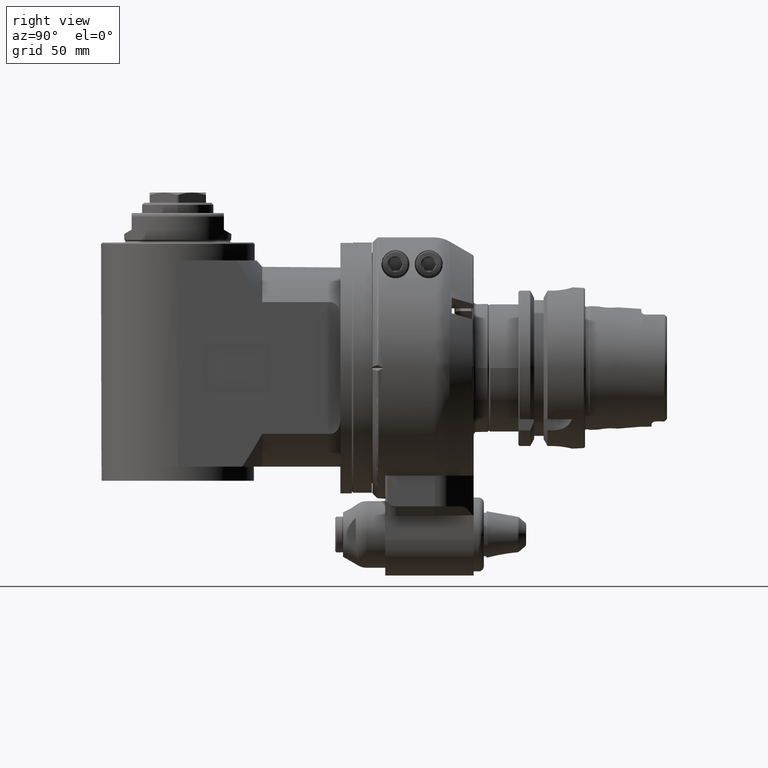
[diagram: clean part render]
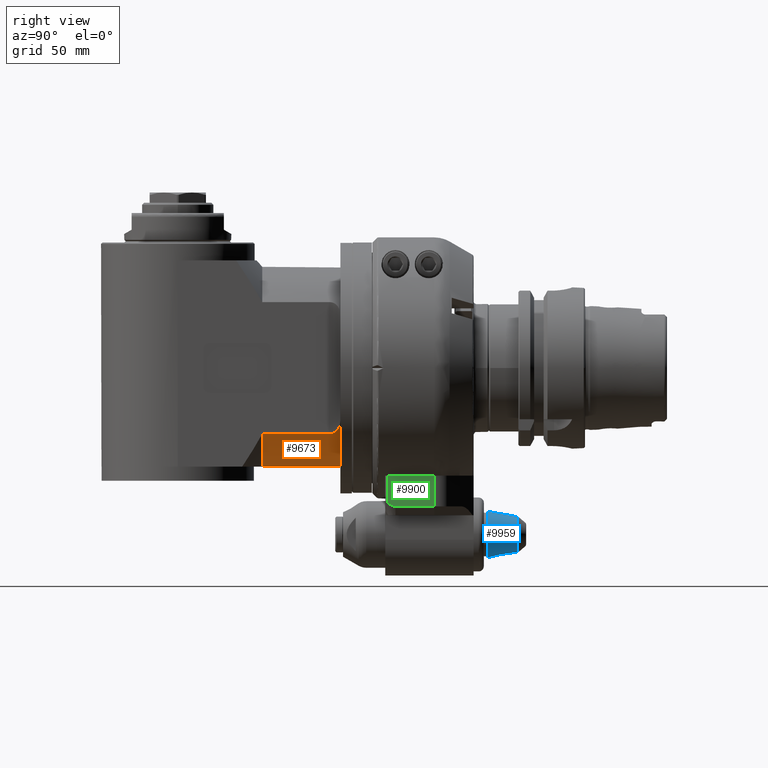
[diagram: same view with three faces highlighted in distinct colors, each labeled with its STEP entity id]
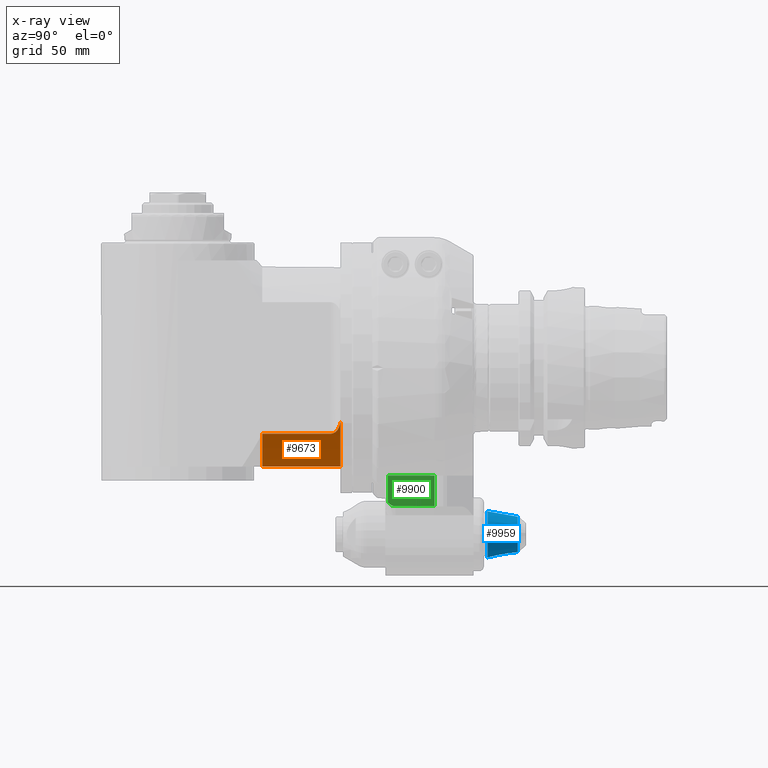
[diagram: x-ray of the same camera — body ghosted, the three highlighted faces saturated]
A machine part, right view with three faces highlighted in distinct colors.
The next image is the same camera in x-ray (body ghosted, the three faces saturated) — at least one of them is partly hidden behind the body in this view.
Their STEP definitions:

[orange] entity #9673 — the highlighted cylindrical surface (partial cylindrical patch) has radius 39.5 mm, axis along (-0, 1, 0).
#95=B_SPLINE_CURVE_WITH_KNOTS('',3,(#14729,#14730,#14731,#14732,#14733,
#14734,#14735,#14736,#14737,#14738,#14739,#14740),.UNSPECIFIED.,.F.,.F.,
(4,2,2,2,2,4),(-1.93050828222532,-1.85797388629216,-1.785439490359,-1.64037069849268,
-1.36443592047398,-1.08850114245528),.UNSPECIFIED.);
#803=FACE_OUTER_BOUND('',#1406,.T.);
#1406=EDGE_LOOP('',(#6582,#6583,#6584,#6585,#6586));
#2064=LINE('',#14601,#2762);
#2078=LINE('',#14656,#2776);
#2762=VECTOR('',#11521,26.5);
#2776=VECTOR('',#11551,30.5);
#3469=CIRCLE('',#10331,39.5);
#3478=CIRCLE('',#10350,39.5);
#4029=VERTEX_POINT('',#14596);
#4030=VERTEX_POINT('',#14600);
#4049=VERTEX_POINT('',#14652);
#4051=VERTEX_POINT('',#14655);
#4057=VERTEX_POINT('',#14673);
#5004=EDGE_CURVE('',#4030,#4029,#2064,.T.);
#5027=EDGE_CURVE('',#4051,#4049,#2078,.T.);
#5035=EDGE_CURVE('',#4057,#4049,#3469,.T.);
#5051=EDGE_CURVE('',#4030,#4057,#95,.T.);
#5052=EDGE_CURVE('',#4051,#4029,#3478,.T.);
#6582=ORIENTED_EDGE('',*,*,#5035,.F.);
#6583=ORIENTED_EDGE('',*,*,#5051,.F.);
#6584=ORIENTED_EDGE('',*,*,#5004,.T.);
#6585=ORIENTED_EDGE('',*,*,#5052,.F.);
#6586=ORIENTED_EDGE('',*,*,#5027,.T.);
#9506=CYLINDRICAL_SURFACE('',#10349,39.5);
#9673=ADVANCED_FACE('',(#803),#9506,.T.);
#10331=AXIS2_PLACEMENT_3D('',#14675,#11562,#11563);
#10349=AXIS2_PLACEMENT_3D('',#14741,#11603,#11604);
#10350=AXIS2_PLACEMENT_3D('',#14742,#11605,#11606);
#11521=DIRECTION('',(0.,-1.,0.));
#11551=DIRECTION('',(0.,1.,0.));
#11562=DIRECTION('center_axis',(0.,1.,0.));
#11563=DIRECTION('ref_axis',(-0.509011880072991,0.,-0.860759493670885));
#11603=DIRECTION('center_axis',(0.,1.,0.));
#11604=DIRECTION('ref_axis',(1.,0.,0.));
#11605=DIRECTION('center_axis',(0.,-1.,0.));
#11606=DIRECTION('ref_axis',(-0.974683544303807,0.,-0.223588882691802));
#14596=CARTESIAN_POINT('',(-36.53528852714,10.,-30.));
#14600=CARTESIAN_POINT('',(-36.53528852714,36.5,-30.));
#14601=CARTESIAN_POINT('',(-36.53528852714,36.5,-30.));
#14652=CARTESIAN_POINT('',(-49.33995821208,40.5,-8.831760866328));
#14655=CARTESIAN_POINT('',(-49.33995821208,10.,-8.831760866328));
#14656=CARTESIAN_POINT('',(-49.33995821208,10.,-8.831760866328));
#14673=CARTESIAN_POINT('',(-30.94592747497,40.5,-34.));
#14675=CARTESIAN_POINT('Origin',(-10.83995821208,40.5,0.));
#14729=CARTESIAN_POINT('Ctrl Pts',(-36.5352885271392,36.5,-30.));
#14730=CARTESIAN_POINT('Ctrl Pts',(-36.5352885271392,36.7417813197774,-30.));
#14731=CARTESIAN_POINT('Ctrl Pts',(-36.5093115090764,36.9865568879428,-30.0223065786437));
#14732=CARTESIAN_POINT('Ctrl Pts',(-36.4061623967231,37.4634279245404,-30.1101941971067));
#14733=CARTESIAN_POINT('Ctrl Pts',(-36.329010908947,37.6955363715735,-30.1757289931184));
#14734=CARTESIAN_POINT('Ctrl Pts',(-36.0344467044144,38.3498225616322,-30.4229103159919));
#14735=CARTESIAN_POINT('Ctrl Pts',(-35.7503870530606,38.7293083563774,-30.6572643831154));
#14736=CARTESIAN_POINT('Ctrl Pts',(-34.8791022485318,39.5828815049562,-31.3512769999091));
#14737=CARTESIAN_POINT('Ctrl Pts',(-34.1545103980812,39.955310173942,-31.8997692146199));
#14738=CARTESIAN_POINT('Ctrl Pts',(-32.5842796431843,40.4153899163436,-32.9901214337526));
#14739=CARTESIAN_POINT('Ctrl Pts',(-31.7376390743422,40.5,-33.5318197328769));
#14740=CARTESIAN_POINT('Ctrl Pts',(-30.9459274749631,40.5,-34.));
#14741=CARTESIAN_POINT('Origin',(-10.83995821208,24.60210073516,0.));
#14742=CARTESIAN_POINT('Origin',(-10.83995821208,10.,0.));

[blue] entity #9959 — the highlighted conical surface has half-angle 10 deg.
#305=CONICAL_SURFACE('',#10943,7.965302560236,0.174532925199433);
#1089=FACE_OUTER_BOUND('',#1728,.T.);
#1728=EDGE_LOOP('',(#8054,#8055,#8056,#8057,#8058,#8059));
#2419=LINE('',#18263,#3117);
#3117=VECTOR('',#13126,7.965302560236);
#3767=CIRCLE('',#10941,9.);
#3768=CIRCLE('',#10942,9.);
#3769=CIRCLE('',#10944,6.930605120471);
#3770=CIRCLE('',#10945,6.930605120471);
#4533=VERTEX_POINT('',#18256);
#4534=VERTEX_POINT('',#18257);
#4535=VERTEX_POINT('',#18262);
#4536=VERTEX_POINT('',#18264);
#5781=EDGE_CURVE('',#4533,#4534,#3767,.T.);
#5782=EDGE_CURVE('',#4534,#4533,#3768,.T.);
#5784=EDGE_CURVE('',#4533,#4535,#2419,.T.);
#5785=EDGE_CURVE('',#4536,#4535,#3769,.T.);
#5786=EDGE_CURVE('',#4535,#4536,#3770,.T.);
#8054=ORIENTED_EDGE('',*,*,#5781,.T.);
#8055=ORIENTED_EDGE('',*,*,#5782,.T.);
#8056=ORIENTED_EDGE('',*,*,#5784,.T.);
#8057=ORIENTED_EDGE('',*,*,#5785,.F.);
#8058=ORIENTED_EDGE('',*,*,#5786,.F.);
#8059=ORIENTED_EDGE('',*,*,#5784,.F.);
#9959=ADVANCED_FACE('',(#1089),#305,.T.);
#10941=AXIS2_PLACEMENT_3D('',#18258,#13119,#13120);
#10942=AXIS2_PLACEMENT_3D('',#18259,#13121,#13122);
#10943=AXIS2_PLACEMENT_3D('',#18261,#13124,#13125);
#10944=AXIS2_PLACEMENT_3D('',#18265,#13127,#13128);
#10945=AXIS2_PLACEMENT_3D('',#18266,#13129,#13130);
#13119=DIRECTION('center_axis',(0.,1.,0.));
#13120=DIRECTION('ref_axis',(0.,0.,-1.));
#13121=DIRECTION('center_axis',(0.,1.,0.));
#13122=DIRECTION('ref_axis',(0.,0.,-1.));
#13124=DIRECTION('center_axis',(0.,-1.,0.));
#13125=DIRECTION('ref_axis',(0.,0.,-1.));
#13126=DIRECTION('',(2.12657684957577E-17,0.984807753012208,-0.17364817766693));
#13127=DIRECTION('center_axis',(0.,1.,0.));
#13128=DIRECTION('ref_axis',(0.,0.,-1.));
#13129=DIRECTION('center_axis',(0.,1.,0.));
#13130=DIRECTION('ref_axis',(0.,0.,-1.));
#18256=CARTESIAN_POINT('',(0.,45.,-56.));
#18257=CARTESIAN_POINT('',(-1.10218211923262E-15,45.,-74.));
#18258=CARTESIAN_POINT('Origin',(0.,45.,-65.));
#18259=CARTESIAN_POINT('Origin',(0.,45.,-65.));
#18261=CARTESIAN_POINT('Origin',(0.,50.86806077894,-65.));
#18262=CARTESIAN_POINT('',(0.,56.73612155788,-58.06939487953));
#18263=CARTESIAN_POINT('',(-9.75468228463324E-16,50.86806077894,-57.034697439764));
#18264=CARTESIAN_POINT('',(8.48754337693907E-16,56.73612155788,-71.930605120471));
#18265=CARTESIAN_POINT('Origin',(0.,56.73612155788,-65.));
#18266=CARTESIAN_POINT('Origin',(0.,56.73612155788,-65.));

[green] entity #9900 — the highlighted planar face has unit normal (-1, 0, 0).
#154=B_SPLINE_CURVE_WITH_KNOTS('',3,(#17827,#17828,#17829,#17830,#17831,
#17832,#17833,#17834,#17835,#17836,#17837,#17838,#17839,#17840,#17841,#17842,
#17843),.UNSPECIFIED.,.F.,.F.,(4,1,1,1,1,1,1,1,1,1,1,1,1,1,4),(0.,0.07142857142857,
0.1428571428571,0.2142857142857,0.2857142857143,0.3571428571429,0.4285714285714,
0.5,0.5714285714286,0.6428571428571,0.7142857142857,0.7857142857143,0.8571428571429,
0.9285714285714,1.),.UNSPECIFIED.);
#608=PLANE('',#10848);
#1030=FACE_OUTER_BOUND('',#1663,.T.);
#1663=EDGE_LOOP('',(#7796,#7797,#7798,#7799,#7800));
#2311=LINE('',#17099,#3009);
#2365=LINE('',#17794,#3063);
#2368=LINE('',#17824,#3066);
#2369=LINE('',#17826,#3067);
#3009=VECTOR('',#12596,18.26953855035);
#3063=VECTOR('',#12874,12.03589877858);
#3066=VECTOR('',#12885,15.26953889725);
#3067=VECTOR('',#12886,10.59664825896);
#4401=VERTEX_POINT('',#17096);
#4402=VERTEX_POINT('',#17098);
#4482=VERTEX_POINT('',#17788);
#4484=VERTEX_POINT('',#17823);
#4485=VERTEX_POINT('',#17825);
#5548=EDGE_CURVE('',#4401,#4402,#2311,.T.);
#5681=EDGE_CURVE('',#4402,#4482,#2365,.T.);
#5685=EDGE_CURVE('',#4484,#4482,#2368,.T.);
#5686=EDGE_CURVE('',#4485,#4401,#2369,.T.);
#5687=EDGE_CURVE('',#4484,#4485,#154,.T.);
#7796=ORIENTED_EDGE('',*,*,#5685,.T.);
#7797=ORIENTED_EDGE('',*,*,#5681,.F.);
#7798=ORIENTED_EDGE('',*,*,#5548,.F.);
#7799=ORIENTED_EDGE('',*,*,#5686,.F.);
#7800=ORIENTED_EDGE('',*,*,#5687,.F.);
#9900=ADVANCED_FACE('',(#1030),#608,.F.);
#10848=AXIS2_PLACEMENT_3D('',#17822,#12883,#12884);
#12596=DIRECTION('',(0.,1.,0.));
#12874=DIRECTION('',(2.941657496709E-10,-1.143139811099E-8,-1.));
#12883=DIRECTION('center_axis',(-1.,0.,0.));
#12884=DIRECTION('ref_axis',(0.,0.,-1.));
#12885=DIRECTION('',(2.318714747886E-10,1.,4.016106954191E-10));
#12886=DIRECTION('',(-5.163122273806E-14,-8.674213053834E-13,1.));
#17096=CARTESIAN_POINT('',(29.,6.,-42.));
#17098=CARTESIAN_POINT('',(29.,24.26953855035,-42.));
#17099=CARTESIAN_POINT('',(29.,6.,-42.));
#17788=CARTESIAN_POINT('',(29.0000000432527,24.2695384127614,-54.0358986870437));
#17794=CARTESIAN_POINT('',(29.,24.26953855035,-42.));
#17822=CARTESIAN_POINT('Origin',(29.,31.,-75.75));
#17823=CARTESIAN_POINT('',(29.,8.999999515516,-54.03589878471));
#17824=CARTESIAN_POINT('',(29.,8.999999515516,-54.03589878471));
#17825=CARTESIAN_POINT('',(29.,6.000000000009,-52.59664825896));
#17826=CARTESIAN_POINT('',(29.,6.000000000009,-52.59664825896));
#17827=CARTESIAN_POINT('Ctrl Pts',(29.,8.999999515516,-54.03589878471));
#17828=CARTESIAN_POINT('Ctrl Pts',(29.,8.937673367796,-54.03589878471));
#17829=CARTESIAN_POINT('Ctrl Pts',(29.,8.812763392638,-54.03185903035));
#17830=CARTESIAN_POINT('Ctrl Pts',(29.,8.624746568773,-54.01357574086));
#17831=CARTESIAN_POINT('Ctrl Pts',(29.,8.43571431107,-53.98296553348));
#17832=CARTESIAN_POINT('Ctrl Pts',(29.,8.244465834199,-53.9396617397));
#17833=CARTESIAN_POINT('Ctrl Pts',(29.,8.049946848868,-53.88305659688));
#17834=CARTESIAN_POINT('Ctrl Pts',(29.,7.852116614935,-53.81274112989));
#17835=CARTESIAN_POINT('Ctrl Pts',(29.,7.649955884615,-53.72794846052));
#17836=CARTESIAN_POINT('Ctrl Pts',(29.,7.44189873023,-53.62739323422));
#17837=CARTESIAN_POINT('Ctrl Pts',(29.,7.227576681996,-53.51016839064));
#17838=CARTESIAN_POINT('Ctrl Pts',(29.,7.005654165959,-53.37478367376));
#17839=CARTESIAN_POINT('Ctrl Pts',(29.,6.773726852099,-53.21871508901));
#17840=CARTESIAN_POINT('Ctrl Pts',(29.,6.530491583714,-53.03978737974));
#17841=CARTESIAN_POINT('Ctrl Pts',(29.,6.274086946645,-52.83521848248));
#17842=CARTESIAN_POINT('Ctrl Pts',(29.,6.092874504435,-52.67941176807));
#17843=CARTESIAN_POINT('Ctrl Pts',(29.,6.000000000009,-52.59664825896));